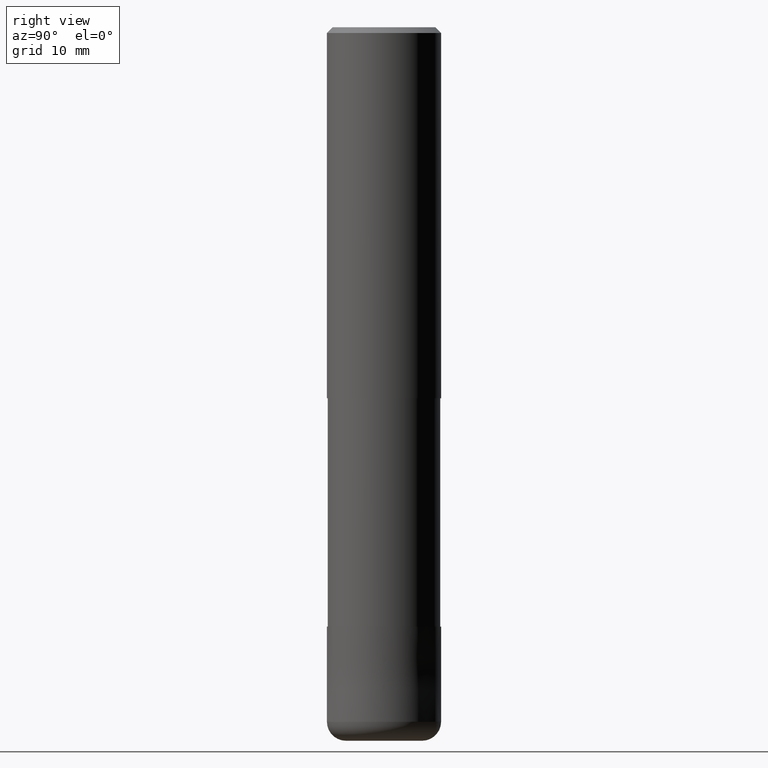
[diagram: clean part render]
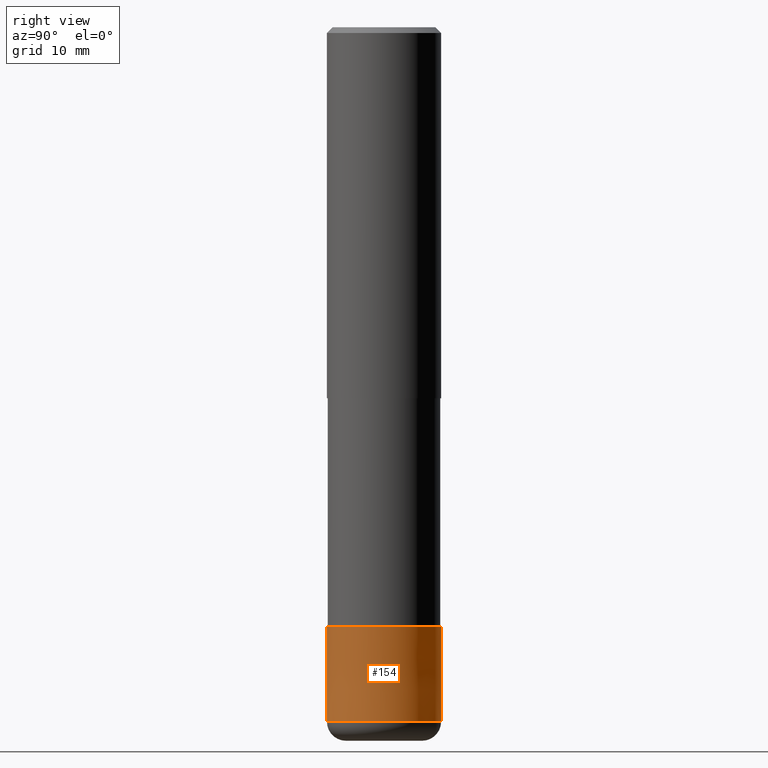
[diagram: same view with one face highlighted and labeled with its STEP entity id]
A machine part, right view. The second image highlights one B-rep face of the part: STEP entity #154.
In plain terms, the highlighted conical surface has half-angle 0.001 deg.
Its self-contained STEP definition (entity closure, byte-faithful):
#94=EDGE_CURVE('',#182,#202,#232,.T.);
#112=EDGE_CURVE('',#120,#182,#252,.T.);
#120=VERTEX_POINT('',#261);
#142=VERTEX_POINT('',#287);
#152=EDGE_CURVE('',#202,#142,#299,.T.);
#154=ADVANCED_FACE('',(#301),#302,.T.);
#182=VERTEX_POINT('',#334);
#198=EDGE_CURVE('',#120,#142,#351,.T.);
#202=VERTEX_POINT('',#355);
#232=CIRCLE('',#378,6.0);
#252=LINE('',#403,#404);
#261=CARTESIAN_POINT('',(0.0,5.9999,-63.0));
#287=CARTESIAN_POINT('',(7.34751566229888E-016,-5.9999,-63.0));
#299=LINE('',#459,#460);
#301=FACE_OUTER_BOUND('',#462,.T.);
#302=CONICAL_SURFACE('',#463,5.99995,9.99999999964336E-006);
#334=CARTESIAN_POINT('',(0.0,6.0,-73.0));
#351=CIRCLE('',#525,5.9999);
#355=CARTESIAN_POINT('',(7.34763812293427E-016,-6.0,-73.0));
#378=AXIS2_PLACEMENT_3D('',#546,#547,#548);
#403=CARTESIAN_POINT('',(-7.34757689261657E-016,5.99995,-68.0));
#404=VECTOR('',#575,1.0);
#459=CARTESIAN_POINT('',(7.34757689261657E-016,-5.99995,-68.0));
#460=VECTOR('',#637,1.0);
#462=EDGE_LOOP('',(#639,#640,#641,#642));
#463=AXIS2_PLACEMENT_3D('',#643,#644,#645);
#525=AXIS2_PLACEMENT_3D('',#709,#710,#711);
#546=CARTESIAN_POINT('',(0.0,0.0,-73.0));
#547=DIRECTION('',(0.0,0.0,-1.0));
#548=DIRECTION('',(0.0,1.0,0.0));
#575=DIRECTION('',(-1.22460635375829E-021,9.99999999947669E-006,-0.99999999995));
#637=DIRECTION('',(-1.22460635375829E-021,9.99999999947669E-006,0.99999999995));
#639=ORIENTED_EDGE('',*,*,#112,.F.);
#640=ORIENTED_EDGE('',*,*,#198,.T.);
#641=ORIENTED_EDGE('',*,*,#152,.F.);
#642=ORIENTED_EDGE('',*,*,#94,.F.);
#643=CARTESIAN_POINT('',(0.0,0.0,-68.0));
#644=DIRECTION('',(0.0,-0.0,-1.0));
#645=DIRECTION('',(0.0,1.0,0.0));
#709=CARTESIAN_POINT('',(0.0,0.0,-63.0));
#710=DIRECTION('',(0.0,0.0,-1.0));
#711=DIRECTION('',(0.0,1.0,0.0));